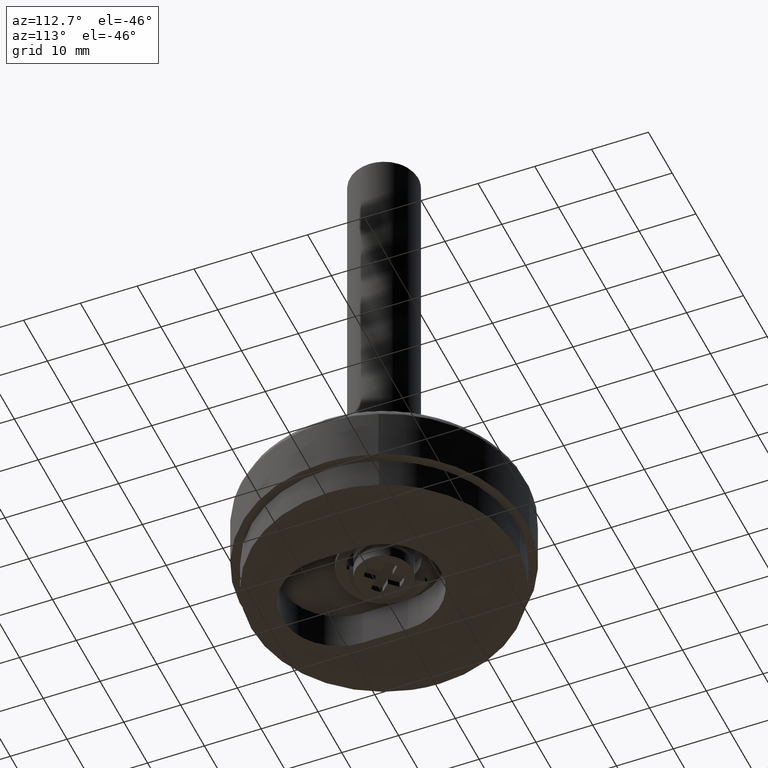
[diagram: clean part render]
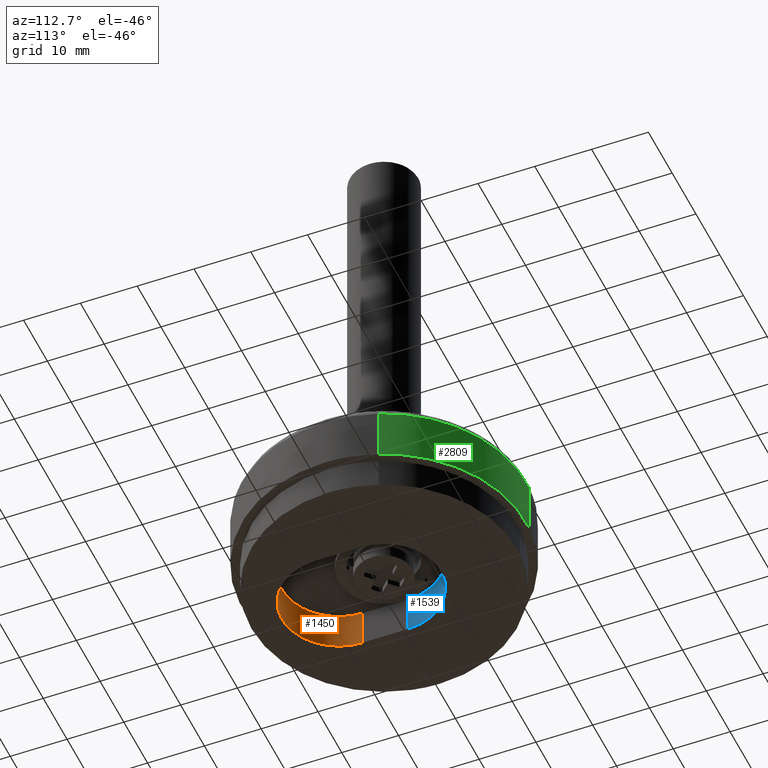
[diagram: same view with three faces highlighted in distinct colors, each labeled with its STEP entity id]
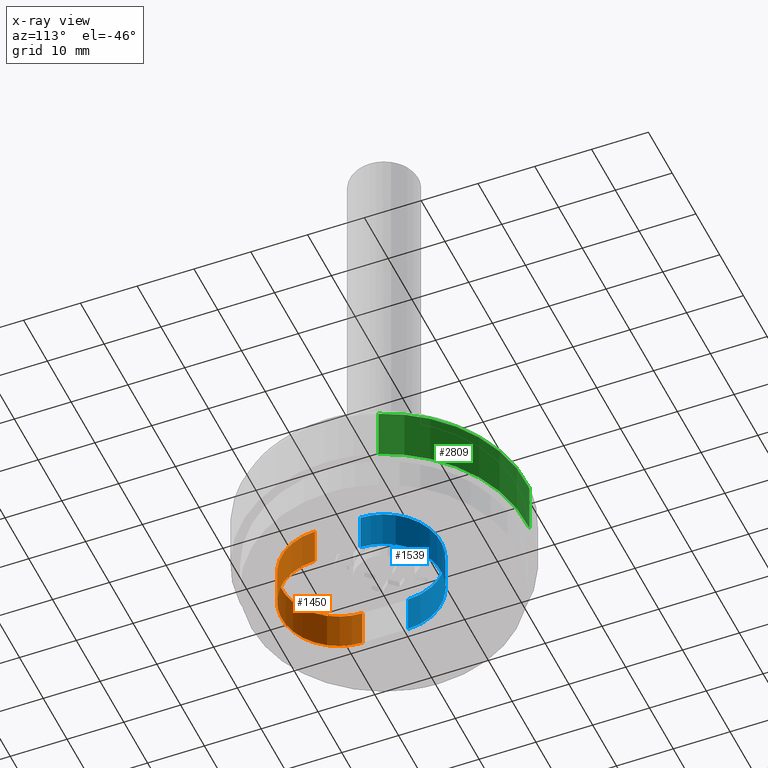
[diagram: x-ray of the same camera — body ghosted, the three highlighted faces saturated]
A machine part, auxiliary view with three faces highlighted in distinct colors.
The next image is the same camera in x-ray (body ghosted, the three faces saturated) — at least one of them is partly hidden behind the body in this view.
Their STEP definitions:

[orange] entity #1450 — the highlighted face is a freeform B-spline surface patch.
#1382=CARTESIAN_POINT('',(-9.996573249755569,-7.738230516921254,7.072500000000001));
#1383=CARTESIAN_POINT('',(-9.996573249755569,-7.738230516921254,-0.176812500000001));
#1384=CARTESIAN_POINT('',(-10.272420728429024,-18.272420728428987,7.072500000000001));
#1385=CARTESIAN_POINT('',(-10.272420728429024,-18.272420728428987,-0.176812500000000));
#1386=CARTESIAN_POINT('',(0.261769483078716,-17.996573249755571,7.072500000000001));
#1387=CARTESIAN_POINT('',(0.261769483078716,-17.996573249755571,-0.176812500000001));
#1388=CARTESIAN_POINT('',(10.795959694586458,-17.720725771082144,7.072500000000001));
#1389=CARTESIAN_POINT('',(10.795959694586458,-17.720725771082144,-0.176812500000000));
#1390=CARTESIAN_POINT('',(9.969173337331281,-7.215409042721566,7.072500000000001));
#1391=CARTESIAN_POINT('',(9.969173337331281,-7.215409042721566,-0.176812500000001));
#1399=(BOUNDED_SURFACE()B_SPLINE_SURFACE(1,2,((#1382,#1384,#1386,#1388,#1390),(#1383,#1385,#1387,#1389,#1391)),.UNSPECIFIED.,.F.,.F.,.U.)B_SPLINE_SURFACE_WITH_KNOTS((2,2),(3,2,3),(0.0,7.249312500000001),(0.0,17.185356238673439,34.370712477346878),.UNSPECIFIED.)GEOMETRIC_REPRESENTATION_ITEM()RATIONAL_B_SPLINE_SURFACE(((1.0,0.688354575693754,1.0,0.688354575693754,1.0),(1.0,0.688354575693754,1.0,0.688354575693754,1.0)))REPRESENTATION_ITEM('')SURFACE());
#1400=CARTESIAN_POINT('',(10.0,-8.0,0.0));
#1401=VERTEX_POINT('',#1400);
#1402=CARTESIAN_POINT('',(-10.0,-8.0,0.0));
#1403=VERTEX_POINT('',#1402);
#1404=CARTESIAN_POINT('',(10.0,-8.0,0.0));
#1405=CARTESIAN_POINT('',(10.000000000000002,-18.000000000000007,0.0));
#1406=CARTESIAN_POINT('',(0.0,-18.0,0.0));
#1407=CARTESIAN_POINT('',(-10.000000000000002,-18.000000000000007,0.0));
#1408=CARTESIAN_POINT('',(-10.0,-8.0,0.0));
#1416=(BOUNDED_CURVE()B_SPLINE_CURVE(2,(#1404,#1405,#1406,#1407,#1408),.UNSPECIFIED.,.F.,.U.)B_SPLINE_CURVE_WITH_KNOTS((3,2,3),(0.0,0.500000000000000,1.0),.UNSPECIFIED.)CURVE()GEOMETRIC_REPRESENTATION_ITEM()RATIONAL_B_SPLINE_CURVE((1.0,0.707106781186548,1.0,0.707106781186548,1.0))REPRESENTATION_ITEM(''));
#1417=EDGE_CURVE('',#1401,#1403,#1416,.T.);
#1418=ORIENTED_EDGE('',*,*,#1417,.T.);
#1419=CARTESIAN_POINT('',(-10.0,-8.0,6.900000000000000));
#1420=VERTEX_POINT('',#1419);
#1421=CARTESIAN_POINT('',(-10.0,-8.0,6.900000000000000));
#1422=CARTESIAN_POINT('',(-10.0,-8.0,0.0));
#1423=QUASI_UNIFORM_CURVE('',1,(#1421,#1422),.UNSPECIFIED.,.F.,.U.);
#1424=EDGE_CURVE('',#1420,#1403,#1423,.T.);
#1425=ORIENTED_EDGE('',*,*,#1424,.F.);
#1426=CARTESIAN_POINT('',(10.0,-8.0,6.900000000000000));
#1427=VERTEX_POINT('',#1426);
#1428=CARTESIAN_POINT('',(10.0,-8.0,6.900000000000000));
#1429=CARTESIAN_POINT('',(10.000000000000002,-18.000000000000007,6.900000000000000));
#1430=CARTESIAN_POINT('',(0.0,-18.0,6.900000000000000));
#1431=CARTESIAN_POINT('',(-10.000000000000002,-18.000000000000007,6.900000000000000));
#1432=CARTESIAN_POINT('',(-10.0,-8.0,6.900000000000000));
#1440=(BOUNDED_CURVE()B_SPLINE_CURVE(2,(#1428,#1429,#1430,#1431,#1432),.UNSPECIFIED.,.F.,.U.)B_SPLINE_CURVE_WITH_KNOTS((3,2,3),(0.0,0.500000000000000,1.0),.UNSPECIFIED.)CURVE()GEOMETRIC_REPRESENTATION_ITEM()RATIONAL_B_SPLINE_CURVE((1.0,0.707106781186548,1.0,0.707106781186548,1.0))REPRESENTATION_ITEM(''));
#1441=EDGE_CURVE('',#1427,#1420,#1440,.T.);
#1442=ORIENTED_EDGE('',*,*,#1441,.F.);
#1443=CARTESIAN_POINT('',(10.0,-8.0,6.900000000000000));
#1444=CARTESIAN_POINT('',(10.0,-8.0,0.0));
#1445=QUASI_UNIFORM_CURVE('',1,(#1443,#1444),.UNSPECIFIED.,.F.,.U.);
#1446=EDGE_CURVE('',#1427,#1401,#1445,.T.);
#1447=ORIENTED_EDGE('',*,*,#1446,.T.);
#1448=EDGE_LOOP('',(#1418,#1425,#1442,#1447));
#1449=FACE_OUTER_BOUND('',#1448,.T.);
#1450=ADVANCED_FACE('',(#1449),#1399,.F.);

[blue] entity #1539 — the highlighted face is a freeform B-spline surface patch.
#1456=CARTESIAN_POINT('',(10.0,2.449213E-015,0.0));
#1457=VERTEX_POINT('',#1456);
#1464=CARTESIAN_POINT('',(10.0,2.449213E-015,6.900000000000000));
#1465=VERTEX_POINT('',#1464);
#1471=CARTESIAN_POINT('',(10.0,2.449213E-015,6.900000000000000));
#1472=CARTESIAN_POINT('',(10.0,2.449213E-015,0.0));
#1473=QUASI_UNIFORM_CURVE('',1,(#1471,#1472),.UNSPECIFIED.,.F.,.U.);
#1474=EDGE_CURVE('',#1465,#1457,#1473,.T.);
#1479=CARTESIAN_POINT('',(9.996573249755569,-0.261769483078745,7.072500000000001));
#1480=CARTESIAN_POINT('',(9.996573249755569,-0.261769483078745,-0.176812500000001));
#1481=CARTESIAN_POINT('',(10.272420728429024,10.272420728428994,7.072500000000001));
#1482=CARTESIAN_POINT('',(10.272420728429024,10.272420728428994,-0.176812500000000));
#1483=CARTESIAN_POINT('',(-0.261769483078718,9.996573249755571,7.072500000000001));
#1484=CARTESIAN_POINT('',(-0.261769483078718,9.996573249755571,-0.176812500000001));
#1485=CARTESIAN_POINT('',(-10.795959694586459,9.720725771082147,7.072500000000001));
#1486=CARTESIAN_POINT('',(-10.795959694586459,9.720725771082147,-0.176812500000000));
#1487=CARTESIAN_POINT('',(-9.969173337331277,-0.784590957278436,7.072500000000001));
#1488=CARTESIAN_POINT('',(-9.969173337331277,-0.784590957278436,-0.176812500000001));
#1496=(BOUNDED_SURFACE()B_SPLINE_SURFACE(1,2,((#1479,#1481,#1483,#1485,#1487),(#1480,#1482,#1484,#1486,#1488)),.UNSPECIFIED.,.F.,.F.,.U.)B_SPLINE_SURFACE_WITH_KNOTS((2,2),(3,2,3),(0.0,7.249312500000001),(0.0,17.185356238673439,34.370712477346878),.UNSPECIFIED.)GEOMETRIC_REPRESENTATION_ITEM()RATIONAL_B_SPLINE_SURFACE(((1.0,0.688354575693754,1.0,0.688354575693754,1.0),(1.0,0.688354575693754,1.0,0.688354575693754,1.0)))REPRESENTATION_ITEM('')SURFACE());
#1497=CARTESIAN_POINT('',(-10.0,-1.224606E-015,0.0));
#1498=VERTEX_POINT('',#1497);
#1499=CARTESIAN_POINT('',(-10.0,0.0,0.0));
#1500=CARTESIAN_POINT('',(-10.000000000000002,10.000000000000002,0.0));
#1501=CARTESIAN_POINT('',(0.0,10.0,0.0));
#1502=CARTESIAN_POINT('',(10.000000000000002,10.000000000000002,0.0));
#1503=CARTESIAN_POINT('',(10.0,0.0,0.0));
#1511=(BOUNDED_CURVE()B_SPLINE_CURVE(2,(#1499,#1500,#1501,#1502,#1503),.UNSPECIFIED.,.F.,.U.)B_SPLINE_CURVE_WITH_KNOTS((3,2,3),(0.0,0.500000000000000,1.0),.UNSPECIFIED.)CURVE()GEOMETRIC_REPRESENTATION_ITEM()RATIONAL_B_SPLINE_CURVE((1.0,0.707106781186548,1.0,0.707106781186548,1.0))REPRESENTATION_ITEM(''));
#1512=EDGE_CURVE('',#1498,#1457,#1511,.T.);
#1513=ORIENTED_EDGE('',*,*,#1512,.T.);
#1514=ORIENTED_EDGE('',*,*,#1474,.F.);
#1515=CARTESIAN_POINT('',(-10.0,-1.224606E-015,6.900000000000000));
#1516=VERTEX_POINT('',#1515);
#1517=CARTESIAN_POINT('',(-10.0,0.0,6.900000000000000));
#1518=CARTESIAN_POINT('',(-10.000000000000002,10.000000000000002,6.900000000000000));
#1519=CARTESIAN_POINT('',(0.0,10.0,6.900000000000000));
#1520=CARTESIAN_POINT('',(10.000000000000002,10.000000000000002,6.900000000000000));
#1521=CARTESIAN_POINT('',(10.0,0.0,6.900000000000000));
#1529=(BOUNDED_CURVE()B_SPLINE_CURVE(2,(#1517,#1518,#1519,#1520,#1521),.UNSPECIFIED.,.F.,.U.)B_SPLINE_CURVE_WITH_KNOTS((3,2,3),(0.0,0.500000000000000,1.0),.UNSPECIFIED.)CURVE()GEOMETRIC_REPRESENTATION_ITEM()RATIONAL_B_SPLINE_CURVE((1.0,0.707106781186548,1.0,0.707106781186548,1.0))REPRESENTATION_ITEM(''));
#1530=EDGE_CURVE('',#1516,#1465,#1529,.T.);
#1531=ORIENTED_EDGE('',*,*,#1530,.F.);
#1532=CARTESIAN_POINT('',(-10.0,-1.224606E-015,6.900000000000000));
#1533=CARTESIAN_POINT('',(-10.0,-1.224606E-015,0.0));
#1534=QUASI_UNIFORM_CURVE('',1,(#1532,#1533),.UNSPECIFIED.,.F.,.U.);
#1535=EDGE_CURVE('',#1516,#1498,#1534,.T.);
#1536=ORIENTED_EDGE('',*,*,#1535,.T.);
#1537=EDGE_LOOP('',(#1513,#1514,#1531,#1536));
#1538=FACE_OUTER_BOUND('',#1537,.T.);
#1539=ADVANCED_FACE('',(#1538),#1496,.F.);

[green] entity #2809 — the highlighted face is a freeform B-spline surface patch.
#2635=CARTESIAN_POINT('',(23.403593343529121,8.790439045383224,14.900000000046250));
#2636=VERTEX_POINT('',#2635);
#2684=CARTESIAN_POINT('',(-1.526193271428666,24.953371197051428,14.900000000000020));
#2685=VERTEX_POINT('',#2684);
#2699=CARTESIAN_POINT('',(-1.526193515187521,24.953371182142892,5.499999999999998));
#2700=VERTEX_POINT('',#2699);
#2701=CARTESIAN_POINT('',(-1.526193271428666,24.953371197051428,14.900000000000020));
#2702=CARTESIAN_POINT('',(-1.526193515187521,24.953371182142892,5.499999999999998));
#2703=QUASI_UNIFORM_CURVE('',1,(#2701,#2702),.UNSPECIFIED.,.F.,.U.);
#2704=EDGE_CURVE('',#2685,#2700,#2703,.T.);
#2738=CARTESIAN_POINT('',(23.403593296878931,8.790439169584483,5.499999999999999));
#2739=VERTEX_POINT('',#2738);
#2753=CARTESIAN_POINT('',(23.403593343529121,8.790439045383224,14.900000000046250));
#2754=CARTESIAN_POINT('',(23.403593296878931,8.790439169584483,5.499999999999999));
#2755=QUASI_UNIFORM_CURVE('',1,(#2753,#2754),.UNSPECIFIED.,.F.,.U.);
#2756=EDGE_CURVE('',#2636,#2739,#2755,.T.);
#2761=CARTESIAN_POINT('',(-1.526213488371411,24.953369960546670,15.135000000073459));
#2762=CARTESIAN_POINT('',(16.909239545076641,26.080930571733543,15.135000000073465));
#2763=CARTESIAN_POINT('',(23.403589469416438,8.790449359789291,15.135000000073468));
#2764=CARTESIAN_POINT('',(-1.526213488371411,24.953369960546670,5.259124999998164));
#2765=CARTESIAN_POINT('',(16.909239545076641,26.080930571733543,5.259124999998164));
#2766=CARTESIAN_POINT('',(23.403589469416438,8.790449359789291,5.259124999998165));
#2774=(BOUNDED_SURFACE()B_SPLINE_SURFACE(2,1,((#2761,#2764),(#2762,#2765),(#2763,#2766)),.UNSPECIFIED.,.F.,.F.,.U.)B_SPLINE_SURFACE_WITH_KNOTS((3,3),(2,2),(0.0,32.911218097166163),(0.0,9.875875000075299),.UNSPECIFIED.)GEOMETRIC_REPRESENTATION_ITEM()RATIONAL_B_SPLINE_SURFACE(((1.0,1.0),(0.765685424949238,0.765685424949238),(0.906274169979695,0.906274169979695)))REPRESENTATION_ITEM('')SURFACE());
#2775=CARTESIAN_POINT('',(-1.526193271428666,24.953371197051425,14.900000000000013));
#2776=CARTESIAN_POINT('',(-0.763808945650802,25.000000000000004,14.899999999999798));
#2777=CARTESIAN_POINT('',(0.0,25.0,14.899999999999800));
#2778=CARTESIAN_POINT('',(17.315248044053167,24.999999999999996,14.899999999999801));
#2779=CARTESIAN_POINT('',(23.403593343529113,8.790439045383224,14.900000000046250));
#2787=(BOUNDED_CURVE()B_SPLINE_CURVE(2,(#2775,#2776,#2777,#2778,#2779),.UNSPECIFIED.,.F.,.U.)B_SPLINE_CURVE_WITH_KNOTS((3,2,3),(0.239333102037472,0.250000000000000,0.440284240510419),.UNSPECIFIED.)CURVE()GEOMETRIC_REPRESENTATION_ITEM()RATIONAL_B_SPLINE_CURVE((0.976072341281762,0.987502951684003,1.0,0.777068145229720,0.893499639823775))REPRESENTATION_ITEM(''));
#2788=EDGE_CURVE('',#2685,#2636,#2787,.T.);
#2789=ORIENTED_EDGE('',*,*,#2788,.T.);
#2790=ORIENTED_EDGE('',*,*,#2756,.T.);
#2791=CARTESIAN_POINT('',(-1.526193515187522,24.953371182142885,5.499999999999998));
#2792=CARTESIAN_POINT('',(-0.763809067871951,25.000000000000004,5.500000000000000));
#2793=CARTESIAN_POINT('',(0.0,25.0,5.500000000000000));
#2794=CARTESIAN_POINT('',(17.315247945894310,25.000000000000007,5.499999999999999));
#2795=CARTESIAN_POINT('',(23.403593296878931,8.790439169584483,5.499999999999998));
#2803=(BOUNDED_CURVE()B_SPLINE_CURVE(2,(#2791,#2792,#2793,#2794,#2795),.UNSPECIFIED.,.F.,.U.)B_SPLINE_CURVE_WITH_KNOTS((3,2,3),(0.239333100351936,0.250000000000000,0.440284239672190),.UNSPECIFIED.)CURVE()GEOMETRIC_REPRESENTATION_ITEM()RATIONAL_B_SPLINE_CURVE((0.976072337669332,0.987502949709274,1.0,0.777068146211767,0.893499638797980))REPRESENTATION_ITEM(''));
#2804=EDGE_CURVE('',#2700,#2739,#2803,.T.);
#2805=ORIENTED_EDGE('',*,*,#2804,.F.);
#2806=ORIENTED_EDGE('',*,*,#2704,.F.);
#2807=EDGE_LOOP('',(#2789,#2790,#2805,#2806));
#2808=FACE_OUTER_BOUND('',#2807,.T.);
#2809=ADVANCED_FACE('',(#2808),#2774,.T.);